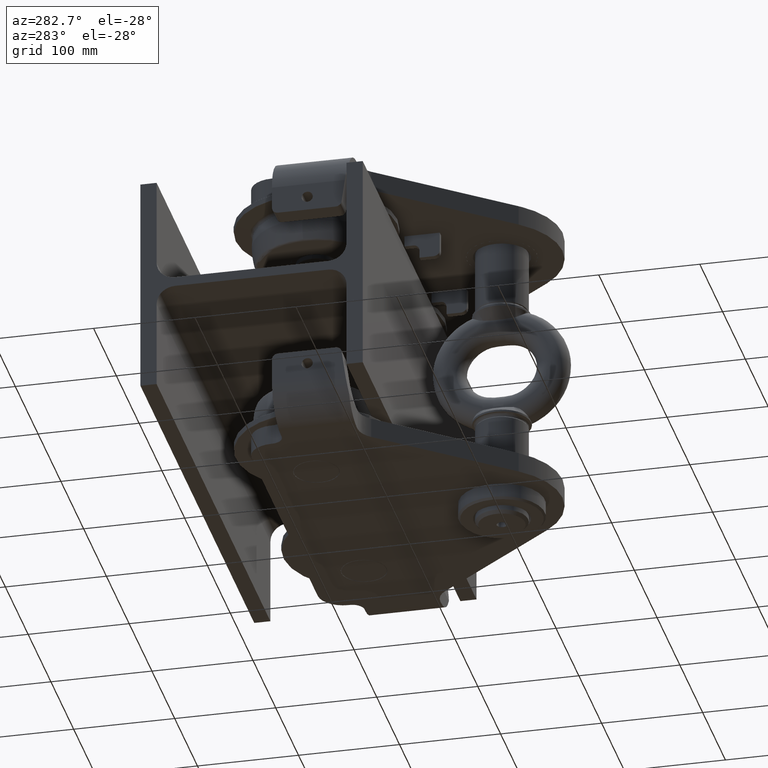
[diagram: clean part render]
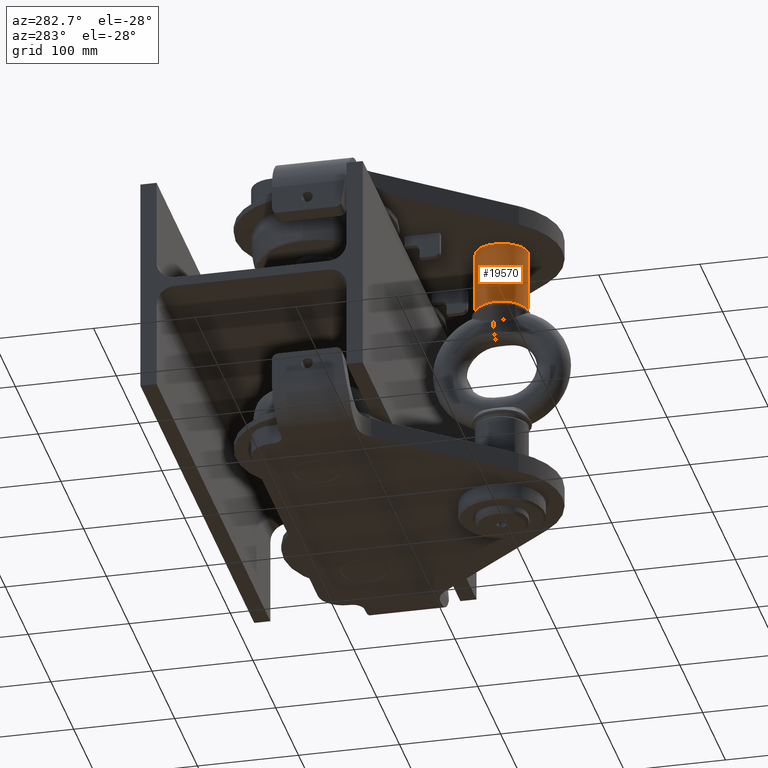
[diagram: same view with one face highlighted and labeled with its STEP entity id]
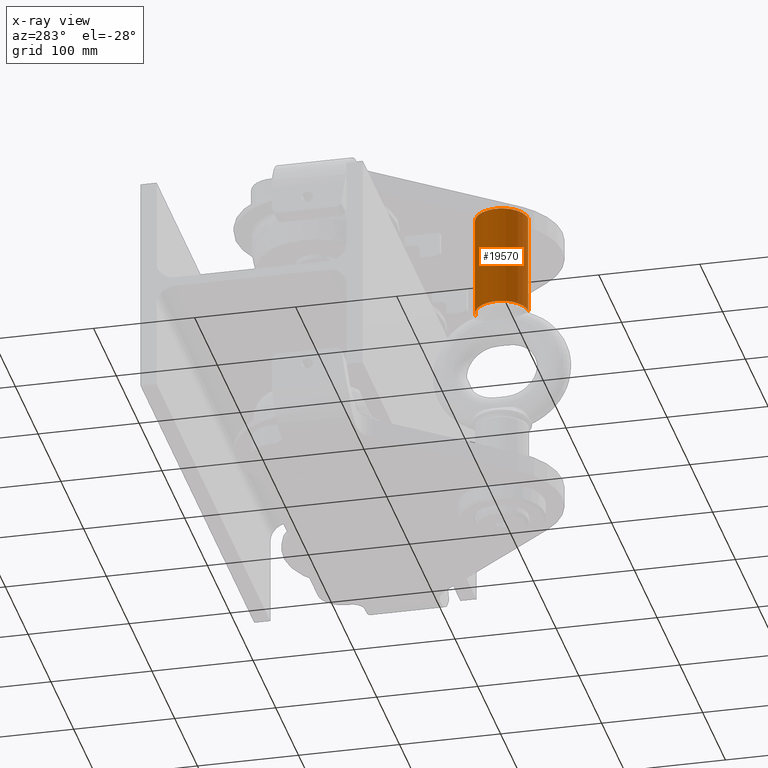
[diagram: x-ray of the same camera — body ghosted, the highlighted face saturated]
A machine part, auxiliary view. The second image highlights one B-rep face of the part: STEP entity #19570.
The next image is the same camera in x-ray: the body ghosted, the highlighted face saturated — about 1% of this face is hidden behind the body in this view.
In plain terms, the highlighted cylindrical surface (edge-blend (fillet) strip) has radius 26 mm, axis along (-0, -0, -1).
Its self-contained STEP definition (entity closure, byte-faithful):
#90 = CARTESIAN_POINT ( 'NONE',  ( -6.275695773819451300E-015, -217.5000000000000300, 63.36602540378402900 ) ) ;
#282 = ORIENTED_EDGE ( 'NONE', *, *, #38522, .F. ) ;
#595 = DIRECTION ( 'NONE',  ( 0.0000000000000000000, -1.000000000000000000, 1.779482502933745900E-016 ) ) ;
#1090 = ORIENTED_EDGE ( 'NONE', *, *, #29858, .T. ) ;
#3368 = VECTOR ( 'NONE', #24194, 1000.000000000000000 ) ;
#3699 = DIRECTION ( 'NONE',  ( -6.939431567305113600E-017, -1.779482502933745900E-016, -1.000000000000000000 ) ) ;
#4795 = DIRECTION ( 'NONE',  ( -6.939431567305113600E-017, -1.779482502933745900E-016, -1.000000000000000000 ) ) ;
#5714 = LINE ( 'NONE', #27200, #3368 ) ;
#5932 = CARTESIAN_POINT ( 'NONE',  ( 3.926508862363810800E-015, -217.5000000000000300, 164.5000000000000000 ) ) ;
#6027 = DIRECTION ( 'NONE',  ( 1.481484572605566300E-032, -1.000000000000000000, 0.0000000000000000000 ) ) ;
#6093 = VECTOR ( 'NONE', #4795, 1000.000000000000000 ) ;
#9446 = EDGE_LOOP ( 'NONE', ( #1090, #30181, #31744, #282 ) ) ;
#9706 = CARTESIAN_POINT ( 'NONE',  ( -7.488856065853100900E-015, -191.5000000000000300, 1.972152263052529500E-028 ) ) ;
#10026 = DIRECTION ( 'NONE',  ( 0.0000000000000000000, -1.000000000000000000, 0.0000000000000000000 ) ) ;
#11917 = VERTEX_POINT ( 'NONE', #90 ) ;
#13186 = CARTESIAN_POINT ( 'NONE',  ( 3.926508862363810800E-015, -191.5000000000000000, 164.5000000000000000 ) ) ;
#13424 = VERTEX_POINT ( 'NONE', #5932 ) ;
#13667 = CARTESIAN_POINT ( 'NONE',  ( -2.766634294619389800E-015, -165.5000000000000000, 164.5000000000000000 ) ) ;
#15546 = LINE ( 'NONE', #31294, #6093 ) ;
#17601 = CARTESIAN_POINT ( 'NONE',  ( -3.091614096036334700E-015, -165.5000000000000300, 63.36602540378402900 ) ) ;
#18445 = AXIS2_PLACEMENT_3D ( 'NONE', #13186, #3699, #10026 ) ;
#18652 = EDGE_CURVE ( 'NONE', #11917, #30589, #25188, .T. ) ;
#18858 = CYLINDRICAL_SURFACE ( 'NONE', #31175, 25.99999999999999600 ) ;
#19570 = ADVANCED_FACE ( 'NONE', ( #24454 ), #18858, .T. ) ;
#21001 = DIRECTION ( 'NONE',  ( -6.939431567305113600E-017, -1.779482502933745900E-016, -1.000000000000000000 ) ) ;
#21034 = CIRCLE ( 'NONE', #18445, 26.00000000000002100 ) ;
#22106 = AXIS2_PLACEMENT_3D ( 'NONE', #38914, #21001, #6027 ) ;
#24194 = DIRECTION ( 'NONE',  ( -6.939431567305113600E-017, -1.779482502933745900E-016, -1.000000000000000000 ) ) ;
#24454 = FACE_OUTER_BOUND ( 'NONE', #9446, .T. ) ;
#25188 = CIRCLE ( 'NONE', #22106, 25.99999999999999600 ) ;
#27200 = CARTESIAN_POINT ( 'NONE',  ( -7.488856065853100900E-015, -217.5000000000000300, 4.626654507627935800E-015 ) ) ;
#29858 = EDGE_CURVE ( 'NONE', #13424, #38135, #21034, .T. ) ;
#30181 = ORIENTED_EDGE ( 'NONE', *, *, #32422, .T. ) ;
#30368 = DIRECTION ( 'NONE',  ( -6.939431567305113600E-017, -1.779482502933745900E-016, -1.000000000000000000 ) ) ;
#30589 = VERTEX_POINT ( 'NONE', #17601 ) ;
#31175 = AXIS2_PLACEMENT_3D ( 'NONE', #9706, #30368, #595 ) ;
#31294 = CARTESIAN_POINT ( 'NONE',  ( -1.067293774363621800E-014, -165.5000000000000300, -4.626654507627541400E-015 ) ) ;
#31744 = ORIENTED_EDGE ( 'NONE', *, *, #18652, .F. ) ;
#32422 = EDGE_CURVE ( 'NONE', #38135, #30589, #15546, .T. ) ;
#38135 = VERTEX_POINT ( 'NONE', #13667 ) ;
#38522 = EDGE_CURVE ( 'NONE', #13424, #11917, #5714, .T. ) ;
#38914 = CARTESIAN_POINT ( 'NONE',  ( -3.091614096036334700E-015, -191.5000000000000300, 63.36602540378402900 ) ) ;